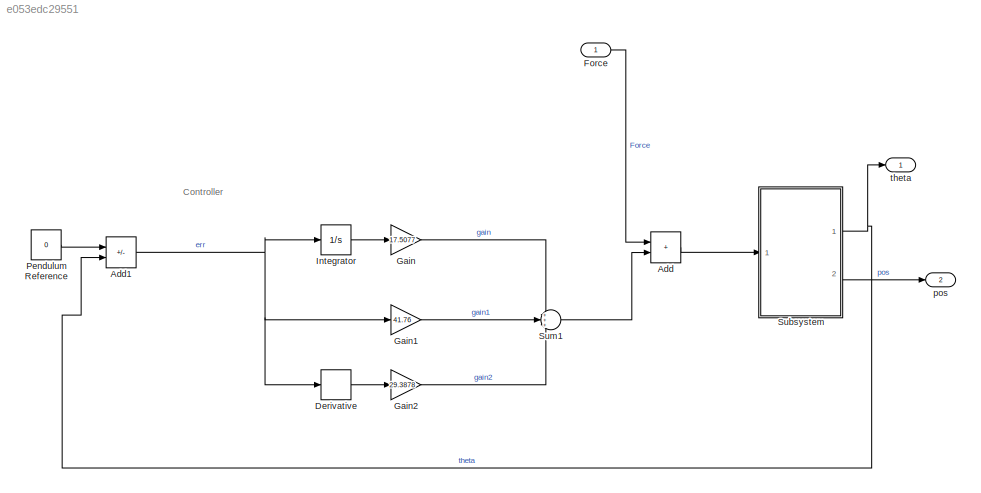
MODEL slx_e053edc29551
KIND model
CONFIG AbsTol = auto
CONFIG EnableMultiTasking = off
CONFIG FixedStep = auto
CONFIG MaxStep = auto
CONFIG MinStep = auto
CONFIG RelTol = 1e-3
CONFIG SampleTimeConstraint = Unconstrained
CONFIG Solver = ode45
CONFIG SolverName = ode45
CONFIG StartTime = 0.0
CONFIG StopTime = 2
WORKSPACE source: external: MATLAB File  (data not in archive)
BLOCK [Sum] Add
  IconShape = rectangular
  Ports = [2, 1]
BLOCK [Sum] Add1
  IconShape = rectangular
  Inputs = +-
  Ports = [2, 1]
BLOCK [Derivative] Derivative
BLOCK [Inport] Force
BLOCK [Gain] Gain
  Gain = 17.5077
BLOCK [Gain] Gain1
  Gain = 41.76
BLOCK [Gain] Gain2
  Gain = 29.3878
BLOCK [Integrator] Integrator
  Ports = [1, 1]
BLOCK [Constant] Pendulum Reference
  Value = 0
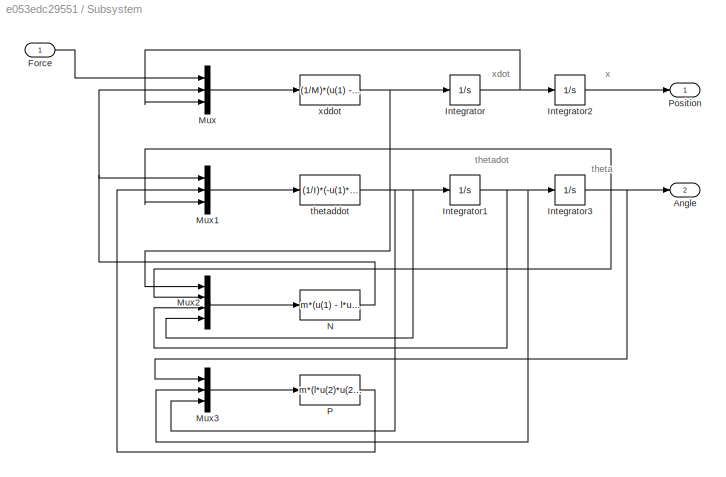
BLOCK [SubSystem] Subsystem
  Ports = [1, 2]
  RequestExecContextInheritance = off
BLOCK [Outport] Subsystem/Angle
  Port = 2
BLOCK [Inport] Subsystem/Force
BLOCK [Integrator] Subsystem/Integrator
  ContinuousStateAttributes = 'xdot'
  Ports = [1, 1]
BLOCK [Integrator] Subsystem/Integrator1
  ContinuousStateAttributes = 'thetadot'
  Ports = [1, 1]
BLOCK [Integrator] Subsystem/Integrator2
  ContinuousStateAttributes = 'x'
  Ports = [1, 1]
BLOCK [Integrator] Subsystem/Integrator3
  ContinuousStateAttributes = 'theta'
  InitialCondition = pi
  Ports = [1, 1]
BLOCK [Mux] Subsystem/Mux
  DisplayOption = bar
  Inputs = 3
  Ports = [3, 1]
BLOCK [Mux] Subsystem/Mux1
  DisplayOption = bar
  Inputs = 3
  Ports = [3, 1]
BLOCK [Mux] Subsystem/Mux2
  DisplayOption = bar
  Ports = [4, 1]
BLOCK [Mux] Subsystem/Mux3
  DisplayOption = bar
  Inputs = 3
  Ports = [3, 1]
BLOCK [Fcn] Subsystem/N
  Expr = m*(u(1) - l*u(3)*u(3)*sin(u(2)) + l*u(4)*cos(u(2)))
BLOCK [Fcn] Subsystem/P
  Expr = m*(l*u(2)*u(2)*cos(u(1)) + l*u(3)*sin(u(1)) + g)
BLOCK [Outport] Subsystem/Position
BLOCK [Fcn] Subsystem/thetaddot
  Expr = (1/I)*(-u(1)*l*cos(u(3)) - u(2)*l*sin(u(3)))
BLOCK [Fcn] Subsystem/xddot
  Expr = (1/M)*(u(1) - u(2) - b*u(3))
BLOCK [Sum] Sum1
  Inputs = +++
  Ports = [3, 1]
BLOCK [Outport] pos
  Port = 2
BLOCK [Outport] theta
ANNOTATION (root): Controller
ANNOTATION Subsystem: theta
ANNOTATION Subsystem: thetadot
ANNOTATION Subsystem: x
ANNOTATION Subsystem: xdot
NET Add1:1 -> Derivative:1, Gain1:1, Integrator:1
LINE Add:1 -> Subsystem:1
LINE Derivative:1 -> Gain2:1
LINE Force:1 -> Add:1
LINE Gain1:1 -> Sum1:2
LINE Gain2:1 -> Sum1:3
LINE Gain:1 -> Sum1:1
LINE Integrator:1 -> Gain:1
LINE Pendulum Reference:1 -> Add1:1
LINE Subsystem/Force:1 -> Subsystem/Mux:1
NET Subsystem/Integrator1:1 -> Subsystem/Integrator3:1, Subsystem/Mux2:3, Subsystem/Mux3:2
LINE Subsystem/Integrator2:1 -> Subsystem/Position:1
NET Subsystem/Integrator3:1 -> Subsystem/Angle:1, Subsystem/Mux1:3, Subsystem/Mux2:2, Subsystem/Mux3:1
NET Subsystem/Integrator:1 -> Subsystem/Integrator2:1, Subsystem/Mux:3
LINE Subsystem/Mux1:1 -> Subsystem/thetaddot:1
LINE Subsystem/Mux2:1 -> Subsystem/N:1
LINE Subsystem/Mux3:1 -> Subsystem/P:1
LINE Subsystem/Mux:1 -> Subsystem/xddot:1
NET Subsystem/N:1 -> Subsystem/Mux1:1, Subsystem/Mux:2
LINE Subsystem/P:1 -> Subsystem/Mux1:2
NET Subsystem/thetaddot:1 -> Subsystem/Integrator1:1, Subsystem/Mux2:4, Subsystem/Mux3:3
NET Subsystem/xddot:1 -> Subsystem/Integrator:1, Subsystem/Mux2:1
NET Subsystem:1 -> Add1:2, theta:1
LINE Subsystem:2 -> pos:1
LINE Sum1:1 -> Add:2
note: NET lines group one-source signal fan-out (src -> all destinations, sorted); 1:1 wires keep LINE
